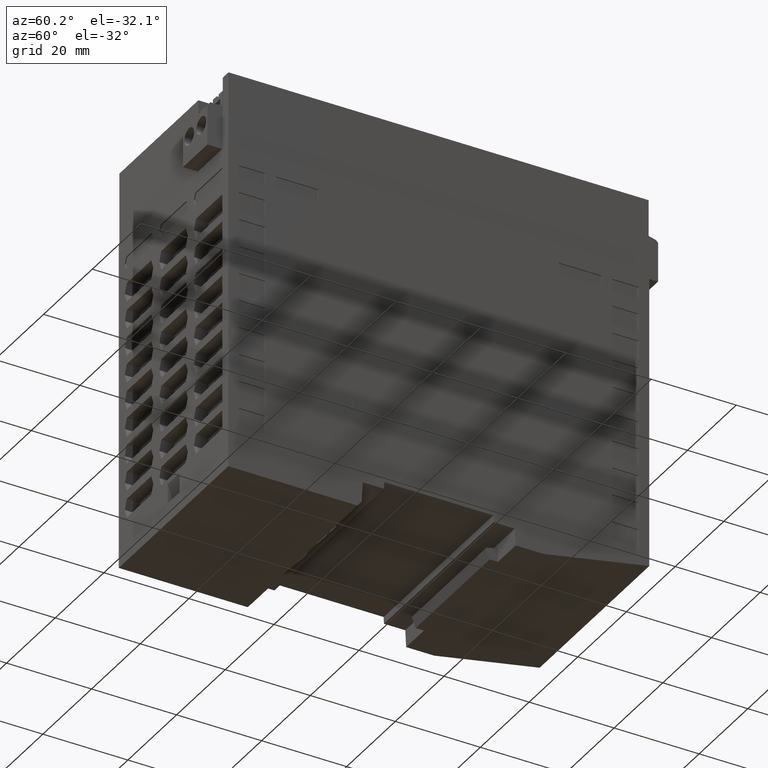
[diagram: clean part render]
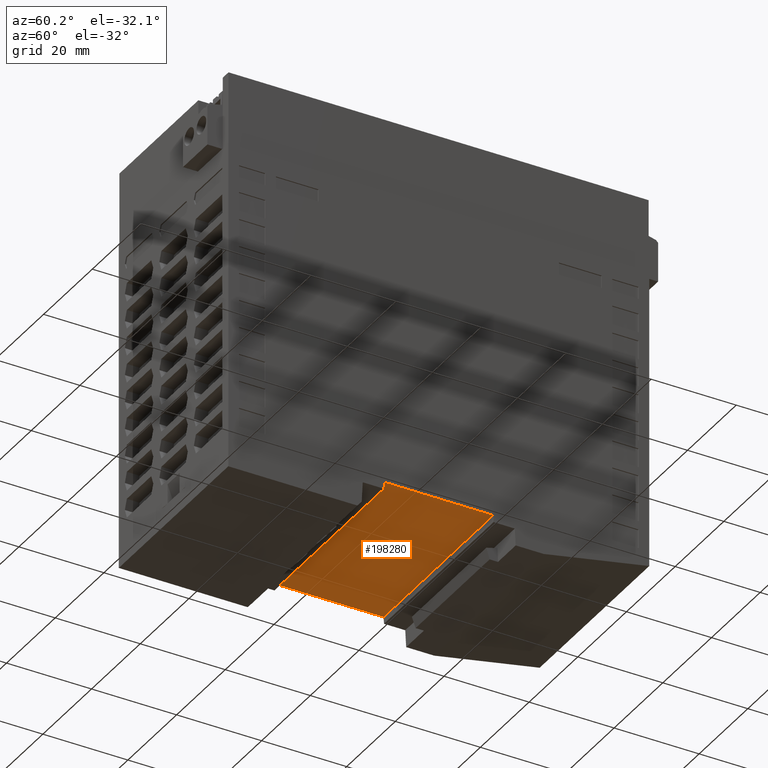
[diagram: same view with one face highlighted and labeled with its STEP entity id]
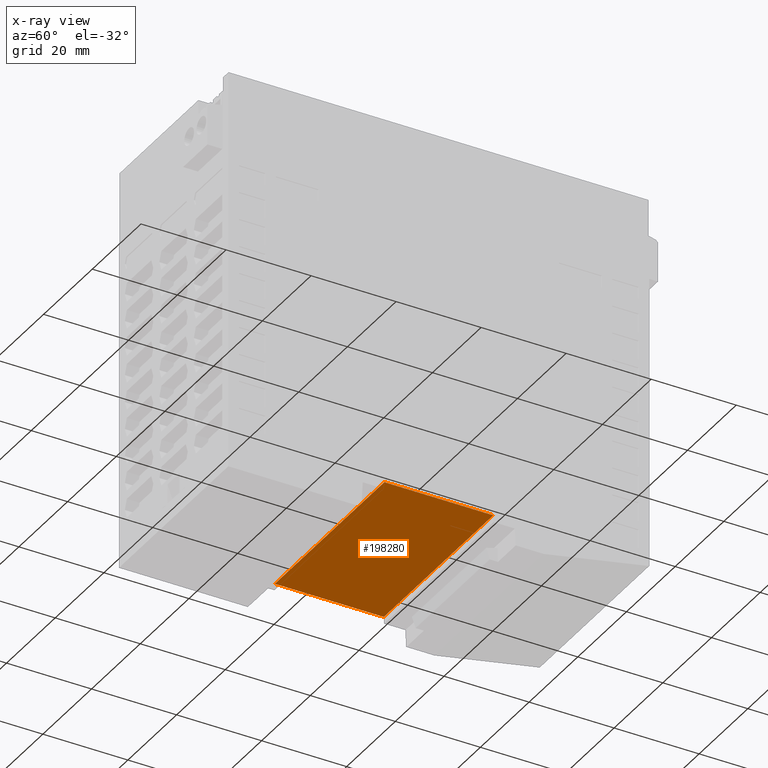
[diagram: x-ray of the same camera — body ghosted, the highlighted face saturated]
A machine part, auxiliary view. The second image highlights one B-rep face of the part: STEP entity #198280.
The next image is the same camera in x-ray: the body ghosted, the highlighted face saturated — about 0% of this face is hidden behind the body in this view.
In plain terms, the highlighted planar face has unit normal (-0, 0, 1).
Its self-contained STEP definition (entity closure, byte-faithful):
#74600=CARTESIAN_POINT('',(-16.,1.60000000000001,12.7999999999964));
#74610=VERTEX_POINT('',#74600);
#74780=CARTESIAN_POINT('',(29.,1.60000000000004,12.7999999999964));
#74790=VERTEX_POINT('',#74780);
#74820=CARTESIAN_POINT('',(0.,1.60000000000004,12.7999999999964));
#74830=DIRECTION('',(-1.,0.,0.));
#74840=VECTOR('',#74830,1.);
#74850=LINE('',#74820,#74840);
#74860=EDGE_CURVE('',#74790,#74610,#74850,.T.);
#140040=CARTESIAN_POINT('',(29.,1.60000000000002,-12.7983943289648));
#140050=VERTEX_POINT('',#140040);
#140080=CARTESIAN_POINT('',(29.,1.60000000000002,0.));
#140090=DIRECTION('',(0.,0.,1.));
#140100=VECTOR('',#140090,1.);
#140110=LINE('',#140080,#140100);
#140120=EDGE_CURVE('',#140050,#74790,#140110,.T.);
#198050=CARTESIAN_POINT('',(6.50000000000001,1.60000000000002,
12.7999999999964));
#198060=DIRECTION('',(0.,1.,0.));
#198070=DIRECTION('',(0.,0.,1.));
#198080=AXIS2_PLACEMENT_3D('',#198050,#198060,#198070);
#198090=PLANE('',#198080);
#198100=CARTESIAN_POINT('',(0.,1.60000000000002,-12.7983943289648));
#198110=DIRECTION('',(1.,0.,0.));
#198120=VECTOR('',#198110,1.);
#198130=LINE('',#198100,#198120);
#198140=CARTESIAN_POINT('',(-16.,1.60000000000002,-12.7983943289648));
#198150=VERTEX_POINT('',#198140);
#198160=EDGE_CURVE('',#198150,#140050,#198130,.T.);
#198170=ORIENTED_EDGE('',*,*,#198160,.T.);
#198180=CARTESIAN_POINT('',(-16.,1.60000000000002,0.));
#198190=DIRECTION('',(0.,0.,-1.));
#198200=VECTOR('',#198190,1.);
#198210=LINE('',#198180,#198200);
#198220=EDGE_CURVE('',#74610,#198150,#198210,.T.);
#198230=ORIENTED_EDGE('',*,*,#198220,.T.);
#198240=ORIENTED_EDGE('',*,*,#74860,.T.);
#198250=ORIENTED_EDGE('',*,*,#140120,.T.);
#198260=EDGE_LOOP('',(#198250,#198240,#198230,#198170));
#198270=FACE_OUTER_BOUND('',#198260,.T.);
#198280=ADVANCED_FACE('',(#198270),#198090,.F.);